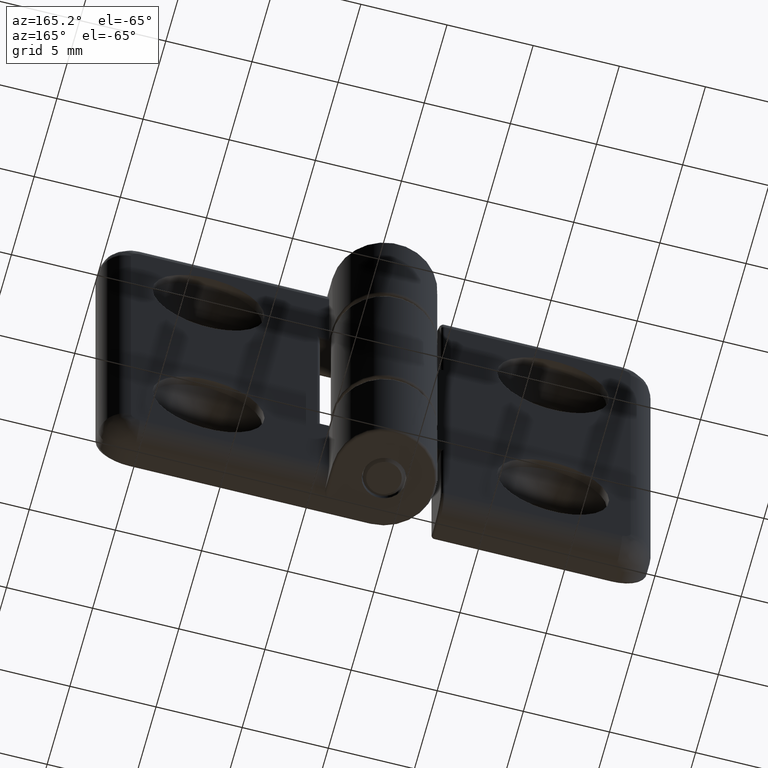
[diagram: clean part render]
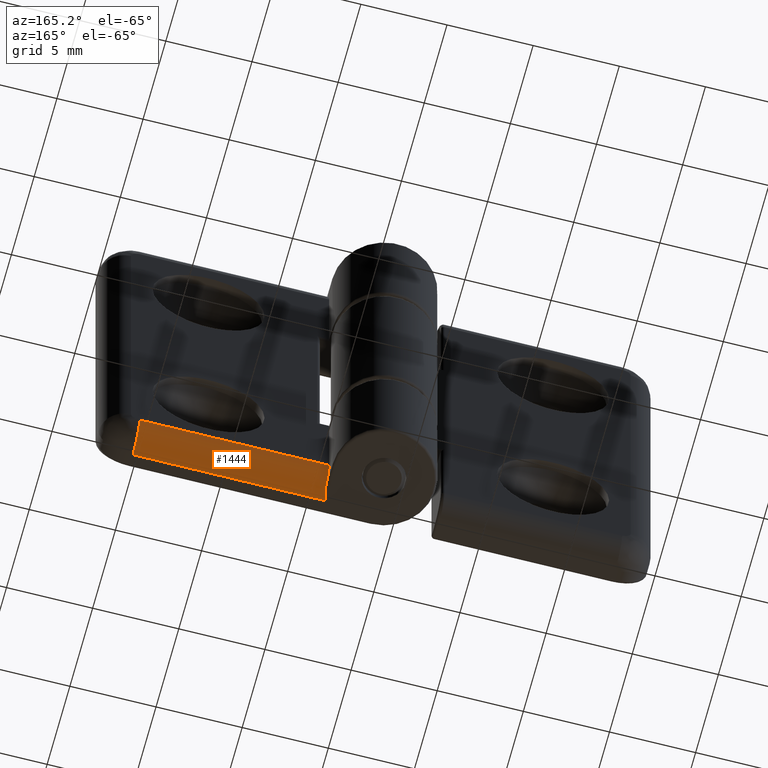
[diagram: same view with one face highlighted and labeled with its STEP entity id]
A machine part, auxiliary view. The second image highlights one B-rep face of the part: STEP entity #1444.
In plain terms, the highlighted cylindrical surface (edge-blend (fillet) strip) has radius 1.5 mm, axis along (1, 0, 0).
Its self-contained STEP definition (entity closure, byte-faithful):
#160=FACE_OUTER_BOUND('',#265,.T.);
#265=EDGE_LOOP('',(#1117,#1118,#1119,#1120,#1121));
#355=B_SPLINE_CURVE_WITH_KNOTS('',3,(#2292,#2293,#2294,#2295,#2296,#2297),
 .UNSPECIFIED.,.F.,.F.,(4,2,4),(0.,0.0388102712991919,0.0776205425983838),
 .UNSPECIFIED.);
#389=LINE('',#2386,#477);
#398=LINE('',#2442,#486);
#477=VECTOR('',#1877,11.);
#486=VECTOR('',#1926,11.2);
#548=CIRCLE('',#1538,1.5);
#571=CIRCLE('',#1583,1.5);
#650=VERTEX_POINT('',#2290);
#651=VERTEX_POINT('',#2291);
#654=VERTEX_POINT('',#2305);
#679=VERTEX_POINT('',#2384);
#686=VERTEX_POINT('',#2414);
#783=EDGE_CURVE('',#650,#651,#355,.F.);
#789=EDGE_CURVE('',#650,#654,#548,.F.);
#829=EDGE_CURVE('',#654,#679,#389,.T.);
#839=EDGE_CURVE('',#679,#686,#571,.T.);
#849=EDGE_CURVE('',#686,#651,#398,.T.);
#1117=ORIENTED_EDGE('',*,*,#789,.T.);
#1118=ORIENTED_EDGE('',*,*,#829,.T.);
#1119=ORIENTED_EDGE('',*,*,#839,.T.);
#1120=ORIENTED_EDGE('',*,*,#849,.T.);
#1121=ORIENTED_EDGE('',*,*,#783,.F.);
#1377=CYLINDRICAL_SURFACE('',#1591,1.5);
#1444=ADVANCED_FACE('',(#160),#1377,.T.);
#1538=AXIS2_PLACEMENT_3D('',#2307,#1789,#1790);
#1583=AXIS2_PLACEMENT_3D('',#2416,#1902,#1903);
#1591=AXIS2_PLACEMENT_3D('',#2441,#1924,#1925);
#1789=DIRECTION('center_axis',(-1.,0.,0.));
#1790=DIRECTION('ref_axis',(0.,0.707106781186548,-0.707106781186547));
#1877=DIRECTION('',(1.,0.,0.));
#1902=DIRECTION('center_axis',(-1.,0.,0.));
#1903=DIRECTION('ref_axis',(0.,1.,0.));
#1924=DIRECTION('center_axis',(1.,0.,0.));
#1925=DIRECTION('ref_axis',(0.,0.707106781186548,-0.707106781186547));
#1926=DIRECTION('',(-1.,0.,0.));
#2290=CARTESIAN_POINT('',(3.,-1.45166852264521,-12.3));
#2291=CARTESIAN_POINT('',(2.8,-2.2,-12.5));
#2292=CARTESIAN_POINT('Ctrl Pts',(2.8,-2.2,-12.5));
#2293=CARTESIAN_POINT('Ctrl Pts',(2.84437271077872,-2.07848032684421,-12.5));
#2294=CARTESIAN_POINT('Ctrl Pts',(2.89299666646422,-1.94649356205283,-12.4844020874547));
#2295=CARTESIAN_POINT('Ctrl Pts',(2.9704720193987,-1.68907173392049,-12.4165700915651));
#2296=CARTESIAN_POINT('Ctrl Pts',(3.,-1.56378708417621,-12.3645398836841));
#2297=CARTESIAN_POINT('Ctrl Pts',(3.,-1.45166852264521,-12.3));
#2305=CARTESIAN_POINT('',(3.,-0.699999999999999,-11.));
#2307=CARTESIAN_POINT('Origin',(3.,-2.2,-11.));
#2384=CARTESIAN_POINT('',(14.,-0.699999999999999,-11.));
#2386=CARTESIAN_POINT('',(11.25,-0.699999999999999,-11.));
#2414=CARTESIAN_POINT('',(14.,-2.2,-12.5));
#2416=CARTESIAN_POINT('Origin',(14.,-2.2,-11.));
#2441=CARTESIAN_POINT('Origin',(11.25,-2.2,-11.));
#2442=CARTESIAN_POINT('',(11.25,-2.2,-12.5));